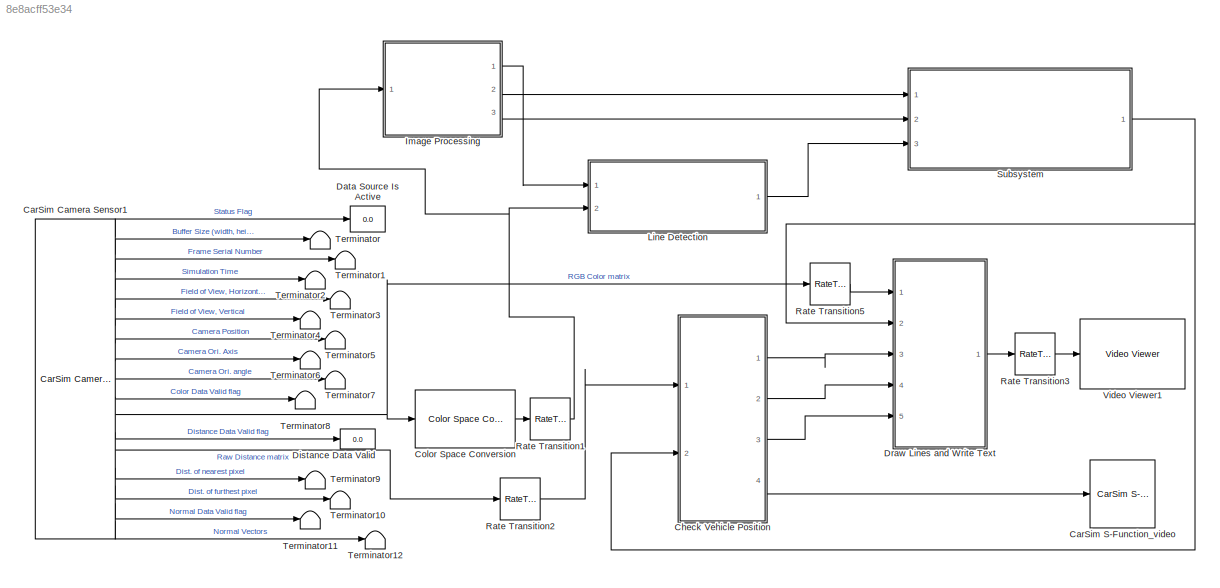
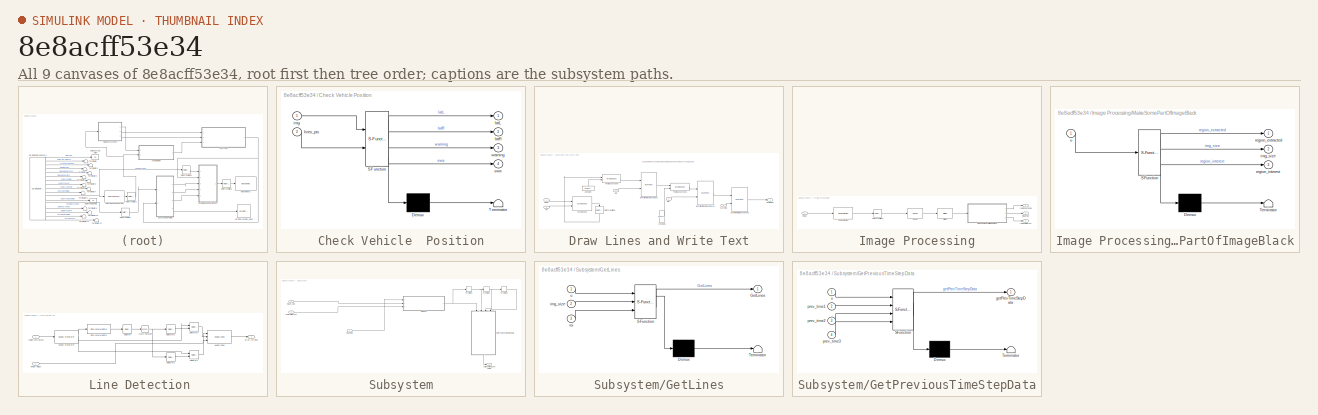
[diagram: thumbnail index - all 9 canvases of the model, root first then tree order]
MODEL slx_8e8acff53e34
KIND model
BLOCK [Reference] CarSim Camera Sensor1  REF=Solver_SF/CarSim Camera Sensor
  Ports = [0, 17]
  Priority = 1
  SourceBlock = Solver_SF/CarSim Camera Sensor
BLOCK [Reference] CarSim S-Function_video  REF=Solver_SF/CarSim S-Function_video
  Ports = [1]
  Priority = 1
  SIMFILE = simfile.sim
  SourceBlock = Solver_SF/CarSim S-Function_video
  SourceType = Vehicle math model library
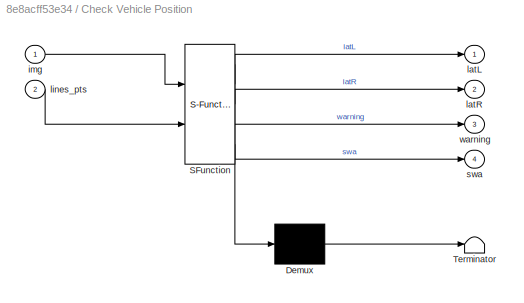
BLOCK [SubSystem] Check Vehicle  Position
  ErrorFcn = Stateflow.Translate.translate
  PermitHierarchicalResolution = ExplicitOnly
  Ports = [2, 4]
  RequestExecContextInheritance = off
  SFBlockType = MATLAB Function
  TreatAsAtomicUnit = on
BLOCK [Demux] Check Vehicle  Position/ Demux 
  Outputs = 1
  Ports = [1, 1]
BLOCK [S-Function] Check Vehicle  Position/ SFunction 
  EnableBusSupport = on
  FunctionName = sf_sfun
  PortCounts = [2 5]
  Ports = [2, 5]
  Tag = Stateflow S-Function Highway_Lane_Detection_CS2018 4
BLOCK [Terminator] Check Vehicle  Position/ Terminator 
BLOCK [Inport] Check Vehicle  Position/img
  IconDisplay = Port number
BLOCK [Outport] Check Vehicle  Position/latL
  IconDisplay = Port number
BLOCK [Outport] Check Vehicle  Position/latR
  IconDisplay = Port number
  Port = 2
BLOCK [Inport] Check Vehicle  Position/lines_pts
  IconDisplay = Port number
  Port = 2
BLOCK [Outport] Check Vehicle  Position/swa
  IconDisplay = Port number
  Port = 4
BLOCK [Outport] Check Vehicle  Position/warning
  IconDisplay = Port number
  Port = 3
BLOCK [Reference] Color Space Conversion  REF=visionconversions/Color Space
 Conversion
  Ports = [1, 1]
  SourceBlock = visionconversions/Color Space\n Conversion
  SourceType = Color Space Conversion
  conversion = Obsolete
  conversionActive = R'G'B' to intensity
  imagePorts = One multidimensional signal
  rec = Rec. 601 (SDTV)
  sys = 1125/60/2:1
  wp_str = D65
BLOCK [Display] Data Source Is Active
  Decimation = 1
  Ports = [1]
BLOCK [Display] Distance Data Valid
  Decimation = 1
  Ports = [1]
BLOCK [SubSystem] Draw Lines and Write Text
  Ports = [5, 1]
  RequestExecContextInheritance = off
BLOCK [Constant] Draw Lines and Write Text/Constant
  OutDataTypeStr = uint32
  Value = [1, 1, 320, 15]
BLOCK [Constant] Draw Lines and Write Text/Constant1
  OutDataTypeStr = uint32
  Value = [1, 15, 320, 30]
BLOCK [Reference] Draw Lines and Write Text/Draw Shapes  REF=visiontextngfix/Draw Shapes
  LockScale = off
  Ports = [2, 1]
  SourceBlock = visiontextngfix/Draw Shapes
  SourceType = Draw Shapes
  accumFracLength = 14
  accumMode = Same as product output
  accumWordLength = 32
  antialiasing = off
  color = [200 255 100]
  display = User-specified value
  fill = off
  fillClrSource = Specify via dialog
  imagePorts = One multidimensional signal
  inType = Obsolete
  intensity = 200
  lineWidth = 5
  memoryFracLength = 14
  memoryMode = Specify word length
  memoryWordLength = 16
  opacity = 0.6
  overflowMode = off
  prodOutputFracLength = 14
  prodOutputMode = Binary point scaling
  prodOutputWordLength = 32
  roundingMode = Floor
  shape = Lines
  viewport = Entire image
BLOCK [Outport] Draw Lines and Write Text/Final Image
  IconDisplay = Port number
BLOCK [Reference] Draw Lines and Write Text/Insert text of distance ahead  REF=visiontextngfix/Insert Text
  Ports = [2, 1]
  SourceBlock = visiontextngfix/Insert Text
  SourceType = Insert Text
  antiAliased = off
  blockFontSize = 14
  dummyVar1 = 0
  dummyVar2 = 0
  dummyVar3 = 0
  dummyVar4 = 0
  fontFace = LucidaTypewriterRegular
  getTextColorFrom = Specify via dialog
  getTextIntensityFrom = Specify via dialog
  getTextLocFrom = Specify via dialog
  getTextOpacityFrom = Specify via dialog
  imagePorts = One multidimensional signal
  inputType = Obsolete
  isInputTransposed = off
  textColor = [256 0 0]
  textIntensity = 1
  textLoc = [160 100]
  textOpacity = 1.0
  theText = {'','Drift to the Right', 'Drift to the Left'}
BLOCK [Reference] Draw Lines and Write Text/Insert text of number of cars  REF=visiontextngfix/Insert Text
  Ports = [2, 1]
  SourceBlock = visiontextngfix/Insert Text
  SourceType = Insert Text
  antiAliased = on
  blockFontSize = 12
  dummyVar1 = 0
  dummyVar2 = 0
  dummyVar3 = 0
  dummyVar4 = 0
  fontFace = LucidaTypewriterRegular
  getTextColorFrom = Specify via dialog
  getTextIntensityFrom = Specify via dialog
  getTextLocFrom = Specify via dialog
  getTextOpacityFrom = Specify via dialog
  imagePorts = One multidimensional signal
  inputType = Obsolete
  isInputTransposed = off
  textColor = [256 256 256]
  textIntensity = 1
  textLoc = [5 1]
  textOpacity = 1.0
  theText = 'Left Lateral Distance to the Line: %.1f m'
BLOCK [Reference] Draw Lines and Write Text/Insert text of number of cars1  REF=visiontextngfix/Insert Text
  Ports = [2, 1]
  SourceBlock = visiontextngfix/Insert Text
  SourceType = Insert Text
  antiAliased = on
  blockFontSize = 12
  dummyVar1 = 0
  dummyVar2 = 0
  dummyVar3 = 0
  dummyVar4 = 0
  fontFace = LucidaTypewriterRegular
  getTextColorFrom = Specify via dialog
  getTextIntensityFrom = Specify via dialog
  getTextLocFrom = Specify via dialog
  getTextOpacityFrom = Specify via dialog
  imagePorts = One multidimensional signal
  inputType = Obsolete
  isInputTransposed = off
  textColor = [256 256 256]
  textIntensity = 1
  textLoc = [5 25]
  textOpacity = 1.0
  theText = 'Right Lateral Distance to the Line: %.1f m'
BLOCK [Inport] Draw Lines and Write Text/Pts
  IconDisplay = Port number
  Port = 2
BLOCK [RateTransition] Draw Lines and Write Text/Rate Transition5
  OutPortSampleTime = 0.05
BLOCK [Reference] Draw Lines and Write Text/Text Background  REF=visiontextngfix/Draw Shapes
  LockScale = off
  Ports = [2, 1]
  SourceBlock = visiontextngfix/Draw Shapes
  SourceType = Draw Shapes
  accumFracLength = 14
  accumMode = Same as product output
  accumWordLength = 32
  antialiasing = off
  color = [0 0 0]
  display = User-specified value
  fill = on
  fillClrSource = Specify via dialog
  imagePorts = One multidimensional signal
  inType = Obsolete
  intensity = 200
  lineWidth = 1
  memoryFracLength = 14
  memoryMode = Specify word length
  memoryWordLength = 16
  opacity = 1
  overflowMode = off
  prodOutputFracLength = 14
  prodOutputMode = Binary point scaling
  prodOutputWordLength = 32
  roundingMode = Floor
  shape = Rectangles
  viewport = Entire image
BLOCK [Reference] Draw Lines and Write Text/Text Background1  REF=visiontextngfix/Draw Shapes
  LockScale = off
  Ports = [2, 1]
  SourceBlock = visiontextngfix/Draw Shapes
  SourceType = Draw Shapes
  accumFracLength = 14
  accumMode = Same as product output
  accumWordLength = 32
  antialiasing = off
  color = [0 0 0]
  display = User-specified value
  fill = on
  fillClrSource = Specify via dialog
  imagePorts = One multidimensional signal
  inType = Obsolete
  intensity = 200
  lineWidth = 1
  memoryFracLength = 14
  memoryMode = Specify word length
  memoryWordLength = 16
  opacity = 1
  overflowMode = off
  prodOutputFracLength = 14
  prodOutputMode = Binary point scaling
  prodOutputWordLength = 32
  roundingMode = Floor
  shape = Rectangles
  viewport = Entire image
BLOCK [Inport] Draw Lines and Write Text/Warning
  IconDisplay = Port number
  Port = 5
BLOCK [Inport] Draw Lines and Write Text/image
  IconDisplay = Port number
BLOCK [Inport] Draw Lines and Write Text/latL
  IconDisplay = Port number
  Port = 3
BLOCK [Inport] Draw Lines and Write Text/latR
  IconDisplay = Port number
  Port = 4
BLOCK [SubSystem] Image Processing
  Ports = [1, 3]
  RequestExecContextInheritance = off
BLOCK [Reference] Image Processing/Closing  REF=visionmorphops/Closing
  Ports = [1, 1]
  SourceBlock = visionmorphops/Closing
  SourceType = Closing
  nhoodsrc = Specify via dialog
  strel = strel('line',5,45)
BLOCK [Reference] Image Processing/Dilation  REF=visionmorphops/Dilation
  Ports = [1, 1]
  SourceBlock = visionmorphops/Dilation
  SourceType = Dilation
  nhoodsrc = Specify via dialog
  strel = [1 1; 1 1]
BLOCK [Reference] Image Processing/Edge Detection  REF=visionanalysis/Edge Detection
  LockScale = off
  Ports = [1, 1]
  SourceBlock = visionanalysis/Edge Detection
  SourceType = Edge Detection
  accumFracLength = 8
  accumMode = Same as product output
  accumWordLength = 32
  autoPercent = 70
  edgeThinning = off
  method = Sobel
  outputFracLength = 4
  outputMode = Same as first input
  outputType = Binary image
  outputWordLength = 16
  overflowMode = off
  prodOutputFracLength = 8
  prodOutputMode = Binary point scaling
  prodOutputWordLength = 32
  roundingMode = Floor
  sigma = 1
  threshold = 30
  thresholdSource = Specify via dialog
  thresholdTuning = 4
  threshold_canny = [0.25 0.60]
  userDefinedThreshold = on
BLOCK [SubSystem] Image Processing/MakeSomePartOfImageBlack
  ErrorFcn = Stateflow.Translate.translate
  PermitHierarchicalResolution = ExplicitOnly
  Ports = [1, 3]
  RequestExecContextInheritance = off
  SFBlockType = MATLAB Function
  TreatAsAtomicUnit = on
BLOCK [Demux] Image Processing/MakeSomePartOfImageBlack/ Demux 
  Outputs = 1
  Ports = [1, 1]
BLOCK [S-Function] Image Processing/MakeSomePartOfImageBlack/ SFunction 
  EnableBusSupport = on
  FunctionName = sf_sfun
  PortCounts = [1 4]
  Ports = [1, 4]
  Tag = Stateflow S-Function Highway_Lane_Detection_CS2018 5
BLOCK [Terminator] Image Processing/MakeSomePartOfImageBlack/ Terminator 
BLOCK [Outport] Image Processing/MakeSomePartOfImageBlack/img_size
  IconDisplay = Port number
  Port = 2
BLOCK [Outport] Image Processing/MakeSomePartOfImageBlack/region_extracted
  IconDisplay = Port number
BLOCK [Outport] Image Processing/MakeSomePartOfImageBlack/region_interest
  IconDisplay = Port number
  Port = 3
BLOCK [Inport] Image Processing/MakeSomePartOfImageBlack/u
  IconDisplay = Port number
BLOCK [RateTransition] Image Processing/Rate Transition3
  OutPortSampleTime = 0.05
BLOCK [Inport] Image Processing/image
  IconDisplay = Port number
BLOCK [Outport] Image Processing/image size
  IconDisplay = Port number
  Port = 2
BLOCK [Outport] Image Processing/region extracted
  IconDisplay = Port number
BLOCK [Outport] Image Processing/region of interest
  IconDisplay = Port number
  Port = 3
BLOCK [SubSystem] Line Detection 
  Ports = [2, 1]
  RequestExecContextInheritance = off
BLOCK [Reference] Line Detection /Find Local Maxima  REF=visionstatistics/Find Local Maxima
  Ports = [1, 1]
  SourceBlock = visionstatistics/Find Local Maxima
  SourceType = Find Local Maxima
  dt_count = uint32
  dt_peak = uint32
  inputIsHough = on
  isOutVarDim = on
  nhood_size = [3 3]
  num_peaks = 20
  src_thresh = Obsolete9b
  src_thresh_inuse = Specify via dialog
  threshold = 30
BLOCK [Reference] Line Detection /Hough Lines  REF=visiontransforms/Hough Lines
  LockScale = off
  Ports = [3, 1]
  SourceBlock = visiontransforms/Hough Lines
  SourceType = Hough Lines
  accumFracLength = 16
  accumMode = Same as product output
  accumWordLength = 32
  firstCoeffFracLength = 15
  firstCoeffMode = Specify word length
  firstCoeffWordLength = 16
  overflowMode = on
  prodOutputFracLength = 16
  prodOutputMode = Binary point scaling
  prodOutputWordLength = 32
  roundingMode = Nearest
  sineCompMethod = Trigonometric function
  thetaRes = pi/180
BLOCK [Reference] Line Detection /Hough Transform  REF=visiontransforms/Hough Transform
  LockScale = off
  Ports = [1, 3]
  SourceBlock = visiontransforms/Hough Transform
  SourceType = Hough Transform
  accumFracLength = 20
  accumMode = Binary point scaling
  accumWordLength = 32
  firstCoeffFracLength = 14
  firstCoeffMode = Binary point scaling
  firstCoeffWordLength = 16
  memoryFracLength = 16
  memoryMode = Binary point scaling
  memoryWordLength = 32
  out_theta_rho = on
  outdtmode = double
  outputFracLength = 0
  outputMode = Binary point scaling
  outputWordLength = 16
  overflowMode = on
  prodOutputFracLength = 20
  prodOutputMode = Binary point scaling
  prodOutputWordLength = 32
  rho_res = 1
  roundingMode = Nearest
  secondCoeffFracLength = 16
  secondCoeffMode = Binary point scaling
  secondCoeffWordLength = 32
  theta_res = pi/30
BLOCK [Math] Line Detection /Math Function
  Operator = transpose
  Ports = [1, 1]
BLOCK [Selector] Line Detection /Selecstor1
  IndexOptions = Index vector (dialog),Select all
  Indices = 1,[2 1]
  InputPortWidth = 2
  NumberOfDimensions = 2
  OutputSizes = 1,1
  Ports = [1, 1]
BLOCK [Selector] Line Detection /Selecstor2
  IndexOptions = Select all,Index vector (port)
  Indices = 1,[2 1]
  InputPortWidth = 2
  NumberOfDimensions = 2
  OutputSizes = 1,1
  Ports = [2, 1]
BLOCK [Selector] Line Detection /Selector
  IndexOptions = Select all,Index vector (dialog)
  Indices = [1 3],[2 1]
  InputPortWidth = 2
  NumberOfDimensions = 2
  OutputSizes = 1,1
  Ports = [1, 1]
BLOCK [Selector] Line Detection /Selector1
  IndexOptions = Select all,Index vector (port)
  Indices = 2,[2 1]
  InputPortWidth = 2
  NumberOfDimensions = 2
  OutputSizes = 1,1
  Ports = [2, 1]
BLOCK [Selector] Line Detection /Selector2
  IndexOptions = Index vector (dialog),Select all
  Indices = 2,[2 1]
  InputPortWidth = 2
  NumberOfDimensions = 2
  OutputSizes = 1,1
  Ports = [1, 1]
BLOCK [Outport] Line Detection /array for lines
  IconDisplay = Port number
BLOCK [Inport] Line Detection /region extracted
  IconDisplay = Port number
BLOCK [Inport] Line Detection /whole region
  IconDisplay = Port number
  Port = 2
BLOCK [RateTransition] Rate Transition1
  OutPortSampleTime = 0.05
BLOCK [RateTransition] Rate Transition2
  OutPortSampleTime = 0.05
BLOCK [RateTransition] Rate Transition3
  OutPortSampleTime = 0.05
BLOCK [RateTransition] Rate Transition5
  OutPortSampleTime = 0.05
BLOCK [SubSystem] Subsystem
  Ports = [3, 1]
  RequestExecContextInheritance = off
BLOCK [SubSystem] Subsystem/GetLines
  ErrorFcn = Stateflow.Translate.translate
  PermitHierarchicalResolution = ExplicitOnly
  Ports = [3, 1]
  RequestExecContextInheritance = off
  SFBlockType = MATLAB Function
  TreatAsAtomicUnit = on
BLOCK [Demux] Subsystem/GetLines/ Demux 
  Outputs = 1
  Ports = [1, 1]
BLOCK [S-Function] Subsystem/GetLines/ SFunction 
  EnableBusSupport = on
  FunctionName = sf_sfun
  PortCounts = [3 2]
  Ports = [3, 2]
  Tag = Stateflow S-Function Highway_Lane_Detection_CS2018 1
BLOCK [Terminator] Subsystem/GetLines/ Terminator 
BLOCK [Outport] Subsystem/GetLines/GetLines
  IconDisplay = Port number
BLOCK [Inport] Subsystem/GetLines/img_size
  IconDisplay = Port number
  Port = 2
BLOCK [Inport] Subsystem/GetLines/roi
  IconDisplay = Port number
  Port = 3
BLOCK [Inport] Subsystem/GetLines/u
  IconDisplay = Port number
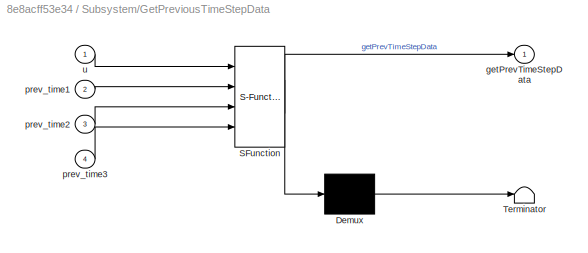
BLOCK [SubSystem] Subsystem/GetPreviousTimeStepData
  ErrorFcn = Stateflow.Translate.translate
  PermitHierarchicalResolution = ExplicitOnly
  Ports = [4, 1]
  RequestExecContextInheritance = off
  SFBlockType = MATLAB Function
  TreatAsAtomicUnit = on
BLOCK [Demux] Subsystem/GetPreviousTimeStepData/ Demux 
  Outputs = 1
  Ports = [1, 1]
BLOCK [S-Function] Subsystem/GetPreviousTimeStepData/ SFunction 
  EnableBusSupport = on
  FunctionName = sf_sfun
  PortCounts = [4 2]
  Ports = [4, 2]
  Tag = Stateflow S-Function Highway_Lane_Detection_CS2018 6
BLOCK [Terminator] Subsystem/GetPreviousTimeStepData/ Terminator 
BLOCK [Outport] Subsystem/GetPreviousTimeStepData/getPrevTimeStepData
  IconDisplay = Port number
BLOCK [Inport] Subsystem/GetPreviousTimeStepData/prev_time1
  IconDisplay = Port number
  Port = 2
BLOCK [Inport] Subsystem/GetPreviousTimeStepData/prev_time2
  IconDisplay = Port number
  Port = 3
BLOCK [Inport] Subsystem/GetPreviousTimeStepData/prev_time3
  IconDisplay = Port number
  Port = 4
BLOCK [Inport] Subsystem/GetPreviousTimeStepData/u
  IconDisplay = Port number
BLOCK [Outport] Subsystem/Left and Right Lane Points
  IconDisplay = Port number
BLOCK [Inport] Subsystem/image info
  IconDisplay = Port number
  Port = 3
BLOCK [Inport] Subsystem/image_size
  IconDisplay = Port number
BLOCK [Memory] Subsystem/prev time 1 
BLOCK [Memory] Subsystem/prev time 2
BLOCK [Memory] Subsystem/prev time 3
BLOCK [Inport] Subsystem/region of interest
  IconDisplay = Port number
  Port = 2
BLOCK [Terminator] Terminator
BLOCK [Terminator] Terminator1
BLOCK [Terminator] Terminator10
BLOCK [Terminator] Terminator11
BLOCK [Terminator] Terminator12
BLOCK [Terminator] Terminator2
BLOCK [Terminator] Terminator3
BLOCK [Terminator] Terminator4
BLOCK [Terminator] Terminator5
BLOCK [Terminator] Terminator6
BLOCK [Terminator] Terminator7
BLOCK [Terminator] Terminator8
BLOCK [Terminator] Terminator9
BLOCK [Reference] Video Viewer1  REF=visionsinks/Video Viewer
  AxisZoom = on
  DefaultConfigurationName = vipscopes.VideoViewerScopeCfg
  FigPos = [1346 461 547 332]
  OpenAtMdlStart = on
  Ports = [1]
  SourceBlock = visionsinks/Video Viewer
  SourceType = Video Viewer
  UserDataPersistent = on
  colormapValue = gray(256)
  imagePorts = One multidimensional signal
  inputType = Obsolete7b
  maxInputVal = 255
  minInputVal = 0
  specRange = off
  trueSizedOnce = off
  useColorMap = off
ANNOTATION Draw Lines and Write Text: Change the third constant 320 to something else, depending on your image size.
LINE CarSim Camera Sensor1:1 -> Data Source Is Active:1
LINE CarSim Camera Sensor1:10 -> Terminator8:1
NET CarSim Camera Sensor1:11 -> Color Space Conversion:1, Rate Transition5:1
LINE CarSim Camera Sensor1:12 -> Distance Data Valid:1
LINE CarSim Camera Sensor1:13 -> Rate Transition2:1
LINE CarSim Camera Sensor1:14 -> Terminator9:1
LINE CarSim Camera Sensor1:15 -> Terminator10:1
LINE CarSim Camera Sensor1:16 -> Terminator11:1
LINE CarSim Camera Sensor1:17 -> Terminator12:1
LINE CarSim Camera Sensor1:2 -> Terminator:1
LINE CarSim Camera Sensor1:3 -> Terminator1:1
LINE CarSim Camera Sensor1:4 -> Terminator2:1
LINE CarSim Camera Sensor1:5 -> Terminator3:1
LINE CarSim Camera Sensor1:6 -> Terminator4:1
LINE CarSim Camera Sensor1:7 -> Terminator5:1
LINE CarSim Camera Sensor1:8 -> Terminator6:1
LINE CarSim Camera Sensor1:9 -> Terminator7:1
LINE Check Vehicle  Position:1 -> Draw Lines and Write Text:3
LINE Check Vehicle  Position:2 -> Draw Lines and Write Text:4
LINE Check Vehicle  Position:3 -> Draw Lines and Write Text:5
LINE Check Vehicle  Position:4 -> CarSim S-Function_video:1
LINE Color Space Conversion:1 -> Rate Transition1:1
LINE Draw Lines and Write Text/Constant1:1 -> Draw Lines and Write Text/Text Background1:2
LINE Draw Lines and Write Text/Constant:1 -> Draw Lines and Write Text/Text Background:2
LINE Draw Lines and Write Text/Draw Shapes:1 -> Draw Lines and Write Text/Rate Transition5:1
LINE Draw Lines and Write Text/Insert text of distance ahead:1 -> Draw Lines and Write Text/Final Image:1
LINE Draw Lines and Write Text/Insert text of number of cars1:1 -> Draw Lines and Write Text/Insert text of distance ahead:1
LINE Draw Lines and Write Text/Insert text of number of cars:1 -> Draw Lines and Write Text/Text Background1:1
LINE Draw Lines and Write Text/Pts:1 -> Draw Lines and Write Text/Draw Shapes:2
LINE Draw Lines and Write Text/Rate Transition5:1 -> Draw Lines and Write Text/Text Background:1
LINE Draw Lines and Write Text/Text Background1:1 -> Draw Lines and Write Text/Insert text of number of cars1:1
LINE Draw Lines and Write Text/Text Background:1 -> Draw Lines and Write Text/Insert text of number of cars:1
LINE Draw Lines and Write Text/Warning:1 -> Draw Lines and Write Text/Insert text of distance ahead:2
LINE Draw Lines and Write Text/image:1 -> Draw Lines and Write Text/Draw Shapes:1
LINE Draw Lines and Write Text/latL:1 -> Draw Lines and Write Text/Insert text of number of cars:2
LINE Draw Lines and Write Text/latR:1 -> Draw Lines and Write Text/Insert text of number of cars1:2
LINE Draw Lines and Write Text:1 -> Rate Transition3:1
LINE Image Processing/Closing:1 -> Image Processing/Dilation:1
LINE Image Processing/Dilation:1 -> Image Processing/MakeSomePartOfImageBlack:1
LINE Image Processing/Edge Detection:1 -> Image Processing/Rate Transition3:1
LINE Image Processing/MakeSomePartOfImageBlack:1 -> Image Processing/region extracted:1
LINE Image Processing/MakeSomePartOfImageBlack:2 -> Image Processing/image size:1
LINE Image Processing/MakeSomePartOfImageBlack:3 -> Image Processing/region of interest:1
LINE Image Processing/Rate Transition3:1 -> Image Processing/Closing:1
LINE Image Processing/image:1 -> Image Processing/Edge Detection:1
LINE Image Processing:1 -> Line Detection :1
LINE Image Processing:2 -> Subsystem:1
LINE Image Processing:3 -> Subsystem:2
LINE Line Detection /Find Local Maxima:1 -> Line Detection /Selector:1
LINE Line Detection /Hough Lines:1 -> Line Detection /array for lines:1
LINE Line Detection /Hough Transform:1 -> Line Detection /Find Local Maxima:1
LINE Line Detection /Hough Transform:2 -> Line Detection /Selector1:1
LINE Line Detection /Hough Transform:3 -> Line Detection /Selecstor2:1
NET Line Detection /Math Function:1 -> Line Detection /Selecstor1:1, Line Detection /Selector2:1
LINE Line Detection /Selecstor1:1 -> Line Detection /Selecstor2:2
LINE Line Detection /Selecstor2:1 -> Line Detection /Hough Lines:2
LINE Line Detection /Selector1:1 -> Line Detection /Hough Lines:1
LINE Line Detection /Selector2:1 -> Line Detection /Selector1:2
LINE Line Detection /Selector:1 -> Line Detection /Math Function:1
LINE Line Detection /region extracted:1 -> Line Detection /Hough Transform:1
LINE Line Detection /whole region:1 -> Line Detection /Hough Lines:3
LINE Line Detection :1 -> Subsystem:3
NET Rate Transition1:1 -> Image Processing:1, Line Detection :2
LINE Rate Transition2:1 -> Check Vehicle  Position:1
LINE Rate Transition3:1 -> Video Viewer1:1
LINE Rate Transition5:1 -> Draw Lines and Write Text:1
NET Subsystem/GetLines:1 -> Subsystem/GetPreviousTimeStepData:1, Subsystem/prev time 1 :1
LINE Subsystem/GetPreviousTimeStepData:1 -> Subsystem/Left and Right Lane Points:1
LINE Subsystem/image info:1 -> Subsystem/GetLines:1
LINE Subsystem/image_size:1 -> Subsystem/GetLines:2
NET Subsystem/prev time 1 :1 -> Subsystem/GetPreviousTimeStepData:2, Subsystem/prev time 2:1
NET Subsystem/prev time 2:1 -> Subsystem/GetPreviousTimeStepData:3, Subsystem/prev time 3:1
LINE Subsystem/prev time 3:1 -> Subsystem/GetPreviousTimeStepData:4
LINE Subsystem/region of interest:1 -> Subsystem/GetLines:3
NET Subsystem:1 -> Check Vehicle  Position:2, Draw Lines and Write Text:2
note: NET lines group one-source signal fan-out (src -> all destinations, sorted); 1:1 wires keep LINE
CHART Subsystem/GetLines states=1 transitions=1
  STATE_LABEL 'eML_blk_kernel()'
  STATE_LABEL "SCRIPT:\nfunction GetLines= fcn(u, img_size, roi)\n\n[m, n] = size(u);\n\n% make the varaible length array to fixed length, 20 x 4\nm_fixed = 20;\nn_fixed = 4;\n\nu1 = zeros(m_fixed,n_fixed);\nfor i=1:m\n    for j=1:n\n        u1(i,j)=u(i,j);\n    end\nend\nright_array = zeros(m_fixed,n_fixed, 'int32');\nleft_array = zeros(m_fixed,n_fixed, 'int32');\n\ni = 1;  % right_array counter\nj = 1;  % left_array counter\n\nfor...<+1997ch>"
CHART Check Vehicle  Position states=1 transitions=1
  STATE_LABEL 'eML_blk_kernel()'
  STATE_LABEL 'SCRIPT:\nfunction [latL, latR, warning, swa] = lateral_detection(img,lines_pts)\n\n[row, col] = size(img);\nleft_line_dist = single(0.0);\nright_line_dist = single(0.0);\nlat_on_pixel_L = 0;\nlat_on_pixel_R = col;\nang_to_left_lane = 0;\nang_to_right_lane = 0;\nlatL = single(0.0);\nlatR = single(0.0);\nwarning = int32(1);\nswa = 5;\n\nangle_to_vehicle = 90.0;\n% assuming the field view is 55.  If not, change here...<+1086ch>'
CHART Image Processing/MakeSomePartOfImageBlack states=1 transitions=1
  STATE_LABEL 'eML_blk_kernel()'
  STATE_LABEL 'SCRIPT:\nfunction [region_extracted, img_size, region_interest]= MakeSomePartBlack(u)\n\n[rows, columns]  = size(u);\nc = zeros(rows, columns);\n\nimg_size = [rows, columns];\nhalf_rows = rows/2;\nhalf_columns = columns/2;\n\ntwo_third_from_top = int32((2*rows)/3);\n\nregion_interest = [0, two_third_from_top, columns, rows-two_third_from_top];\n\n% use the following for linear fit.  start with 10 points of x, y...<+884ch>'
CHART Subsystem/GetPreviousTimeStepData states=1 transitions=1
  STATE_LABEL 'eML_blk_kernel()'
  STATE_LABEL 'SCRIPT:\nfunction getPrevTimeStepData= fcn(u, prev_time1, prev_time2, prev_time3)\n\ngetPrevTimeStepData= u;\nif all(u(1,:) == 0)\n    prev_time_r = prev_time1(1,:);\n    if (all(prev_time1(1,:)) == 0)\n        if (all(prev_time2(1,:)) == 0)\n            prev_time_r = prev_time3(1,:);\n        else\n            prev_time_r = prev_time2(1,:);\n        end\n    end\n    getPrevTimeStepData(1,:) = prev_time_r;\nen...<+301ch>'
